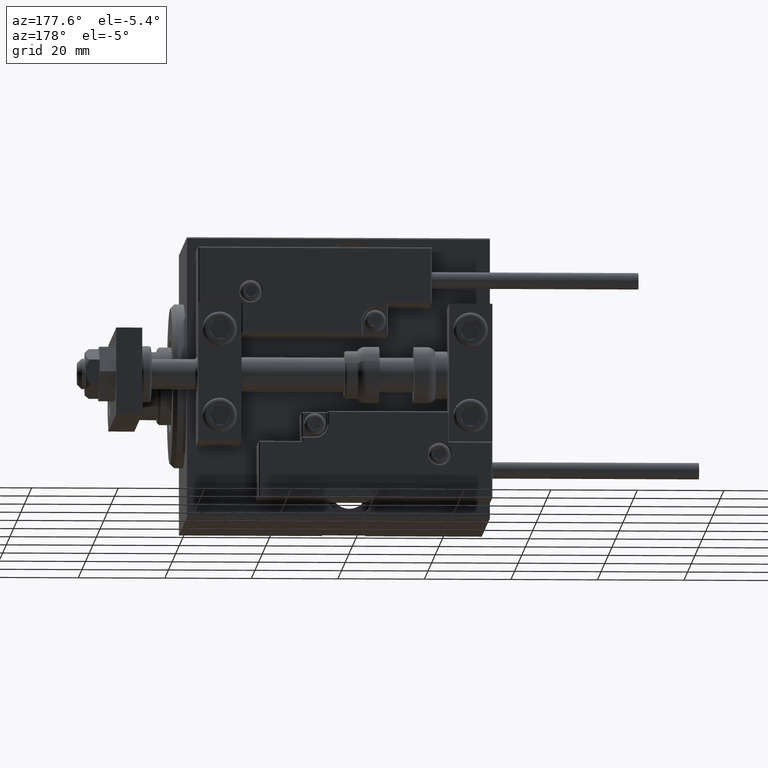
[diagram: clean part render]
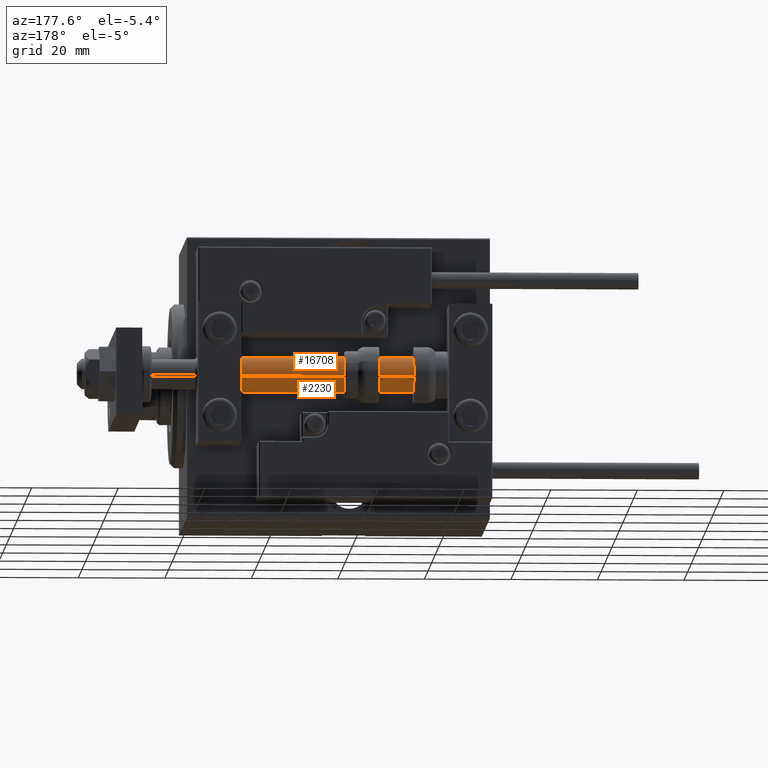
[diagram: same view with one multi-face feature highlighted, each face labeled with its STEP entity id]
A machine part, auxiliary view. The highlighted faces form ONE feature: a constant-radius fillet chain: 2 tangent blend faces with common blend radius 4 mm. The faces share edges in the B-rep.
Their STEP definitions:
[1] entity #2230 (Cylinder):
#39 = CIRCLE ( 'NONE', #28041, 4.000000000000000000 ) ;
#1202 = VERTEX_POINT ( 'NONE', #29928 ) ;
#2230 = ADVANCED_FACE ( 'NONE', ( #49134 ), #37854, .T. ) ;
#2899 = ORIENTED_EDGE ( 'NONE', *, *, #30372, .F. ) ;
#3081 = CARTESIAN_POINT ( 'NONE',  ( 4.000000000000000000, 4.898587196589412829E-16, 70.00000000000000000 ) ) ;
#3865 = LINE ( 'NONE', #15875, #31143 ) ;
#4007 = CARTESIAN_POINT ( 'NONE',  ( 0.000000000000000000, 0.000000000000000000, 70.00000000000000000 ) ) ;
#4328 = DIRECTION ( 'NONE',  ( 1.000000000000000000, 0.000000000000000000, 0.000000000000000000 ) ) ;
#7013 = VECTOR ( 'NONE', #30392, 1000.000000000000000 ) ;
#7348 = LINE ( 'NONE', #19360, #7013 ) ;
#8086 = CARTESIAN_POINT ( 'NONE',  ( 0.000000000000000000, 0.000000000000000000, 2.000000000000029310 ) ) ;
#8495 = DIRECTION ( 'NONE',  ( 1.000000000000000000, 0.000000000000000000, 0.000000000000000000 ) ) ;
#15875 = CARTESIAN_POINT ( 'NONE',  ( -4.000000000000000000, 0.000000000000000000, 70.00000000000000000 ) ) ;
#19004 = EDGE_LOOP ( 'NONE', ( #2899, #28357, #44286, #26739 ) ) ;
#19360 = CARTESIAN_POINT ( 'NONE',  ( 4.000000000000000000, 4.898587196589412829E-16, 70.00000000000000000 ) ) ;
#19547 = AXIS2_PLACEMENT_3D ( 'NONE', #8086, #23370, #4328 ) ;
#21894 = EDGE_CURVE ( 'NONE', #45684, #43855, #7348, .T. ) ;
#23370 = DIRECTION ( 'NONE',  ( -0.000000000000000000, -0.000000000000000000, 1.000000000000000000 ) ) ;
#25085 = VERTEX_POINT ( 'NONE', #42711 ) ;
#26081 = DIRECTION ( 'NONE',  ( -0.000000000000000000, -0.000000000000000000, -1.000000000000000000 ) ) ;
#26739 = ORIENTED_EDGE ( 'NONE', *, *, #29632, .F. ) ;
#28041 = AXIS2_PLACEMENT_3D ( 'NONE', #4007, #34581, #8495 ) ;
#28357 = ORIENTED_EDGE ( 'NONE', *, *, #21894, .T. ) ;
#29632 = EDGE_CURVE ( 'NONE', #1202, #25085, #3865, .T. ) ;
#29928 = CARTESIAN_POINT ( 'NONE',  ( -4.000000000000000000, 0.000000000000000000, 70.00000000000000000 ) ) ;
#30079 = CARTESIAN_POINT ( 'NONE',  ( 0.000000000000000000, 0.000000000000000000, 70.00000000000000000 ) ) ;
#30372 = EDGE_CURVE ( 'NONE', #45684, #1202, #39, .T. ) ;
#30392 = DIRECTION ( 'NONE',  ( -0.000000000000000000, -0.000000000000000000, -1.000000000000000000 ) ) ;
#31143 = VECTOR ( 'NONE', #43183, 1000.000000000000000 ) ;
#34581 = DIRECTION ( 'NONE',  ( 0.000000000000000000, 0.000000000000000000, 1.000000000000000000 ) ) ;
#37161 = CIRCLE ( 'NONE', #19547, 4.000000000000000000 ) ;
#37854 = CYLINDRICAL_SURFACE ( 'NONE', #42443, 4.000000000000000000 ) ;
#42338 = DIRECTION ( 'NONE',  ( -1.000000000000000000, 0.000000000000000000, 0.000000000000000000 ) ) ;
#42443 = AXIS2_PLACEMENT_3D ( 'NONE', #30079, #26081, #42338 ) ;
#42711 = CARTESIAN_POINT ( 'NONE',  ( -4.000000000000000000, 0.000000000000000000, 2.000000000000029310 ) ) ;
#43183 = DIRECTION ( 'NONE',  ( -0.000000000000000000, -0.000000000000000000, -1.000000000000000000 ) ) ;
#43855 = VERTEX_POINT ( 'NONE', #45409 ) ;
#44286 = ORIENTED_EDGE ( 'NONE', *, *, #45870, .T. ) ;
#45409 = CARTESIAN_POINT ( 'NONE',  ( 4.000000000000000000, 4.898587196589412829E-16, 2.000000000000029310 ) ) ;
#45684 = VERTEX_POINT ( 'NONE', #3081 ) ;
#45870 = EDGE_CURVE ( 'NONE', #43855, #25085, #37161, .T. ) ;
#49134 = FACE_OUTER_BOUND ( 'NONE', #19004, .T. ) ;
[2] entity #16708 (Cylinder):
#1202 = VERTEX_POINT ( 'NONE', #29928 ) ;
#1964 = AXIS2_PLACEMENT_3D ( 'NONE', #37009, #2672, #9942 ) ;
#2672 = DIRECTION ( 'NONE',  ( -0.000000000000000000, -0.000000000000000000, -1.000000000000000000 ) ) ;
#3081 = CARTESIAN_POINT ( 'NONE',  ( 4.000000000000000000, 4.898587196589412829E-16, 70.00000000000000000 ) ) ;
#3865 = LINE ( 'NONE', #15875, #31143 ) ;
#4872 = EDGE_LOOP ( 'NONE', ( #36989, #27688, #8578, #45199 ) ) ;
#5039 = DIRECTION ( 'NONE',  ( 1.000000000000000000, 0.000000000000000000, 0.000000000000000000 ) ) ;
#5869 = DIRECTION ( 'NONE',  ( 0.000000000000000000, 0.000000000000000000, 1.000000000000000000 ) ) ;
#7013 = VECTOR ( 'NONE', #30392, 1000.000000000000000 ) ;
#7348 = LINE ( 'NONE', #19360, #7013 ) ;
#8578 = ORIENTED_EDGE ( 'NONE', *, *, #29632, .T. ) ;
#9942 = DIRECTION ( 'NONE',  ( -1.000000000000000000, 0.000000000000000000, 0.000000000000000000 ) ) ;
#10577 = EDGE_CURVE ( 'NONE', #25085, #43855, #47370, .T. ) ;
#15875 = CARTESIAN_POINT ( 'NONE',  ( -4.000000000000000000, 0.000000000000000000, 70.00000000000000000 ) ) ;
#16708 = ADVANCED_FACE ( 'NONE', ( #24716 ), #47776, .T. ) ;
#19360 = CARTESIAN_POINT ( 'NONE',  ( 4.000000000000000000, 4.898587196589412829E-16, 70.00000000000000000 ) ) ;
#21894 = EDGE_CURVE ( 'NONE', #45684, #43855, #7348, .T. ) ;
#22534 = CIRCLE ( 'NONE', #32106, 4.000000000000000000 ) ;
#24716 = FACE_OUTER_BOUND ( 'NONE', #4872, .T. ) ;
#25085 = VERTEX_POINT ( 'NONE', #42711 ) ;
#27688 = ORIENTED_EDGE ( 'NONE', *, *, #34729, .F. ) ;
#29632 = EDGE_CURVE ( 'NONE', #1202, #25085, #3865, .T. ) ;
#29928 = CARTESIAN_POINT ( 'NONE',  ( -4.000000000000000000, 0.000000000000000000, 70.00000000000000000 ) ) ;
#30392 = DIRECTION ( 'NONE',  ( -0.000000000000000000, -0.000000000000000000, -1.000000000000000000 ) ) ;
#31143 = VECTOR ( 'NONE', #43183, 1000.000000000000000 ) ;
#31348 = AXIS2_PLACEMENT_3D ( 'NONE', #32081, #39100, #5039 ) ;
#32081 = CARTESIAN_POINT ( 'NONE',  ( 0.000000000000000000, 0.000000000000000000, 2.000000000000029310 ) ) ;
#32106 = AXIS2_PLACEMENT_3D ( 'NONE', #32430, #5869, #36440 ) ;
#32430 = CARTESIAN_POINT ( 'NONE',  ( 0.000000000000000000, 0.000000000000000000, 70.00000000000000000 ) ) ;
#34729 = EDGE_CURVE ( 'NONE', #1202, #45684, #22534, .T. ) ;
#36440 = DIRECTION ( 'NONE',  ( 1.000000000000000000, 0.000000000000000000, 0.000000000000000000 ) ) ;
#36989 = ORIENTED_EDGE ( 'NONE', *, *, #21894, .F. ) ;
#37009 = CARTESIAN_POINT ( 'NONE',  ( 0.000000000000000000, 0.000000000000000000, 70.00000000000000000 ) ) ;
#39100 = DIRECTION ( 'NONE',  ( -0.000000000000000000, -0.000000000000000000, 1.000000000000000000 ) ) ;
#42711 = CARTESIAN_POINT ( 'NONE',  ( -4.000000000000000000, 0.000000000000000000, 2.000000000000029310 ) ) ;
#43183 = DIRECTION ( 'NONE',  ( -0.000000000000000000, -0.000000000000000000, -1.000000000000000000 ) ) ;
#43855 = VERTEX_POINT ( 'NONE', #45409 ) ;
#45199 = ORIENTED_EDGE ( 'NONE', *, *, #10577, .T. ) ;
#45409 = CARTESIAN_POINT ( 'NONE',  ( 4.000000000000000000, 4.898587196589412829E-16, 2.000000000000029310 ) ) ;
#45684 = VERTEX_POINT ( 'NONE', #3081 ) ;
#47370 = CIRCLE ( 'NONE', #31348, 4.000000000000000000 ) ;
#47776 = CYLINDRICAL_SURFACE ( 'NONE', #1964, 4.000000000000000000 ) ;